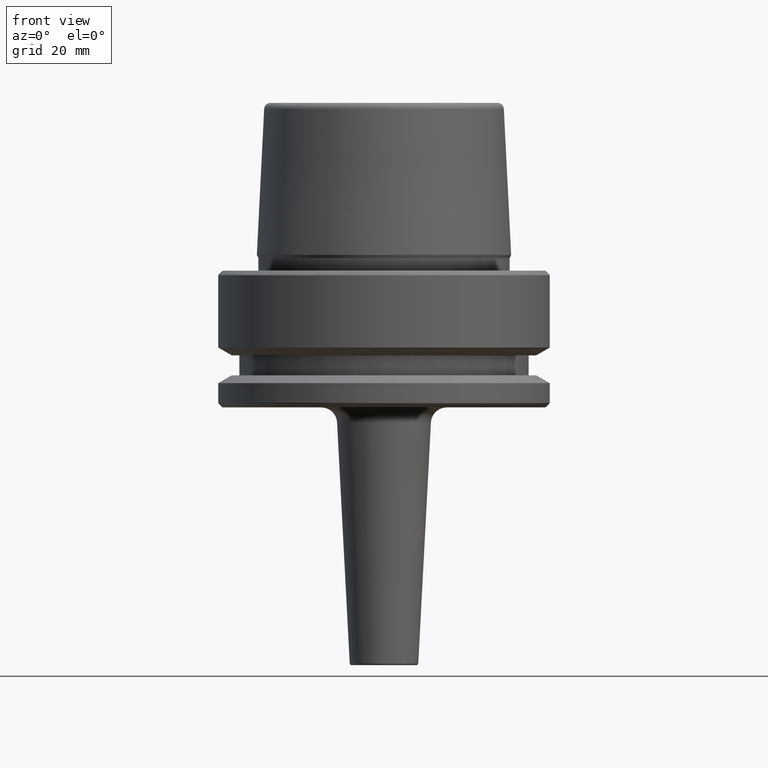
[diagram: clean part render]
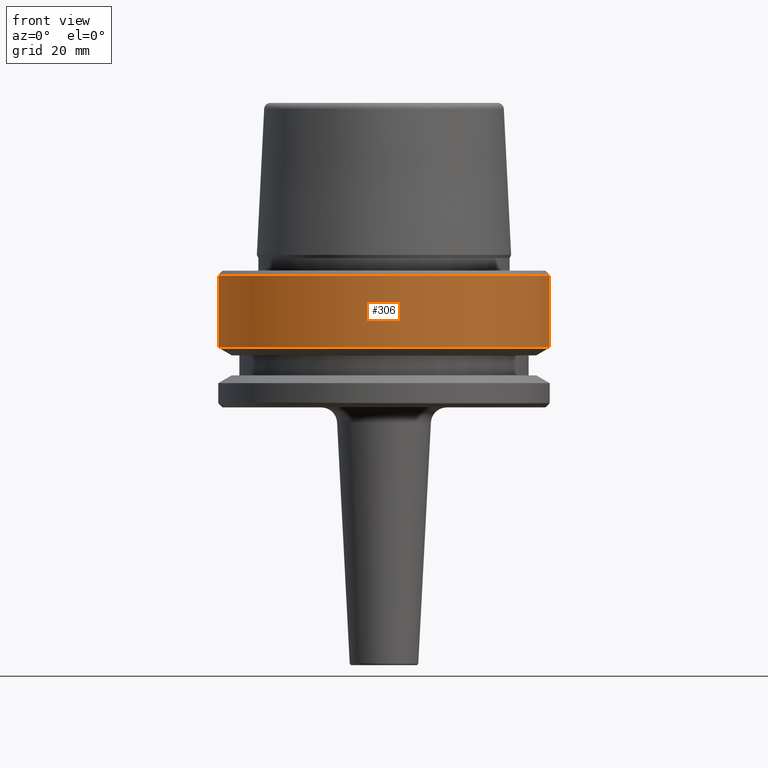
[diagram: same view with one face highlighted and labeled with its STEP entity id]
A machine part, front view. The second image highlights one B-rep face of the part: STEP entity #306.
In plain terms, the highlighted cylindrical surface (partial cylindrical patch) has radius 31.5 mm, axis along (-0, -0, 1).
Its self-contained STEP definition (entity closure, byte-faithful):
#23 = DIRECTION ( 'NONE',  ( -0.0000000000000000000, -0.0000000000000000000, 1.000000000000000000 ) ) ;
#34 = DIRECTION ( 'NONE',  ( 1.000000000000000000, 0.0000000000000000000, 0.0000000000000000000 ) ) ;
#61 = ORIENTED_EDGE ( 'NONE', *, *, #659, .T. ) ;
#63 = EDGE_CURVE ( 'NONE', #1082, #872, #285, .T. ) ;
#102 = ORIENTED_EDGE ( 'NONE', *, *, #63, .F. ) ;
#179 = DIRECTION ( 'NONE',  ( 1.000000000000000000, 0.0000000000000000000, 0.0000000000000000000 ) ) ;
#244 = CARTESIAN_POINT ( 'NONE',  ( 0.0000000000000000000, 0.0000000000000000000, -14.62250092524070100 ) ) ;
#261 = AXIS2_PLACEMENT_3D ( 'NONE', #741, #647, #179 ) ;
#285 = LINE ( 'NONE', #436, #787 ) ;
#306 = ADVANCED_FACE ( 'NONE', ( #938 ), #387, .T. ) ;
#331 = CARTESIAN_POINT ( 'NONE',  ( -31.50000000000000000, 3.857637417314162700E-015, -14.62250092524070100 ) ) ;
#335 = CARTESIAN_POINT ( 'NONE',  ( 31.50000000000000000, 0.0000000000000000000, 78.96908074195309300 ) ) ;
#342 = DIRECTION ( 'NONE',  ( -0.0000000000000000000, -0.0000000000000000000, 1.000000000000000000 ) ) ;
#365 = EDGE_LOOP ( 'NONE', ( #102, #489, #61, #1140 ) ) ;
#378 = DIRECTION ( 'NONE',  ( -0.0000000000000000000, -0.0000000000000000000, 1.000000000000000000 ) ) ;
#387 = CYLINDRICAL_SURFACE ( 'NONE', #261, 31.50000000000000000 ) ;
#436 = CARTESIAN_POINT ( 'NONE',  ( -31.50000000000000000, 3.857637417314162700E-015, 78.96908074195309300 ) ) ;
#451 = VERTEX_POINT ( 'NONE', #1231 ) ;
#455 = LINE ( 'NONE', #335, #778 ) ;
#489 = ORIENTED_EDGE ( 'NONE', *, *, #1097, .T. ) ;
#548 = CARTESIAN_POINT ( 'NONE',  ( 0.0000000000000000000, 0.0000000000000000000, -0.9656854249492363700 ) ) ;
#643 = DIRECTION ( 'NONE',  ( 1.000000000000000000, 0.0000000000000000000, 0.0000000000000000000 ) ) ;
#647 = DIRECTION ( 'NONE',  ( -0.0000000000000000000, -0.0000000000000000000, 1.000000000000000000 ) ) ;
#659 = EDGE_CURVE ( 'NONE', #451, #1226, #455, .T. ) ;
#724 = AXIS2_PLACEMENT_3D ( 'NONE', #548, #1227, #643 ) ;
#741 = CARTESIAN_POINT ( 'NONE',  ( 0.0000000000000000000, 0.0000000000000000000, 78.96908074195309300 ) ) ;
#778 = VECTOR ( 'NONE', #23, 1000.000000000000000 ) ;
#780 = CIRCLE ( 'NONE', #960, 31.50000000000000000 ) ;
#787 = VECTOR ( 'NONE', #342, 1000.000000000000000 ) ;
#828 = EDGE_CURVE ( 'NONE', #872, #1226, #1149, .T. ) ;
#872 = VERTEX_POINT ( 'NONE', #1069 ) ;
#938 = FACE_OUTER_BOUND ( 'NONE', #365, .T. ) ;
#960 = AXIS2_PLACEMENT_3D ( 'NONE', #244, #378, #34 ) ;
#1003 = CARTESIAN_POINT ( 'NONE',  ( 31.50000000000000000, 0.0000000000000000000, -0.9656854249492363700 ) ) ;
#1069 = CARTESIAN_POINT ( 'NONE',  ( -31.50000000000000000, 3.857637417314162700E-015, -0.9656854249492363700 ) ) ;
#1082 = VERTEX_POINT ( 'NONE', #331 ) ;
#1097 = EDGE_CURVE ( 'NONE', #1082, #451, #780, .T. ) ;
#1140 = ORIENTED_EDGE ( 'NONE', *, *, #828, .F. ) ;
#1149 = CIRCLE ( 'NONE', #724, 31.50000000000000000 ) ;
#1226 = VERTEX_POINT ( 'NONE', #1003 ) ;
#1227 = DIRECTION ( 'NONE',  ( -0.0000000000000000000, -0.0000000000000000000, 1.000000000000000000 ) ) ;
#1231 = CARTESIAN_POINT ( 'NONE',  ( 31.50000000000000000, 0.0000000000000000000, -14.62250092524070100 ) ) ;